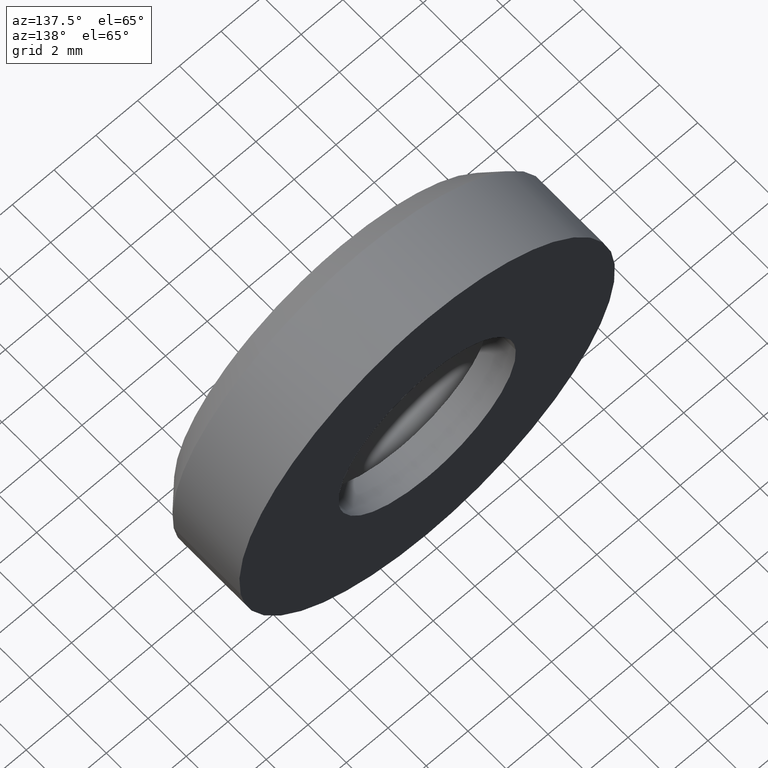
[diagram: clean part render]
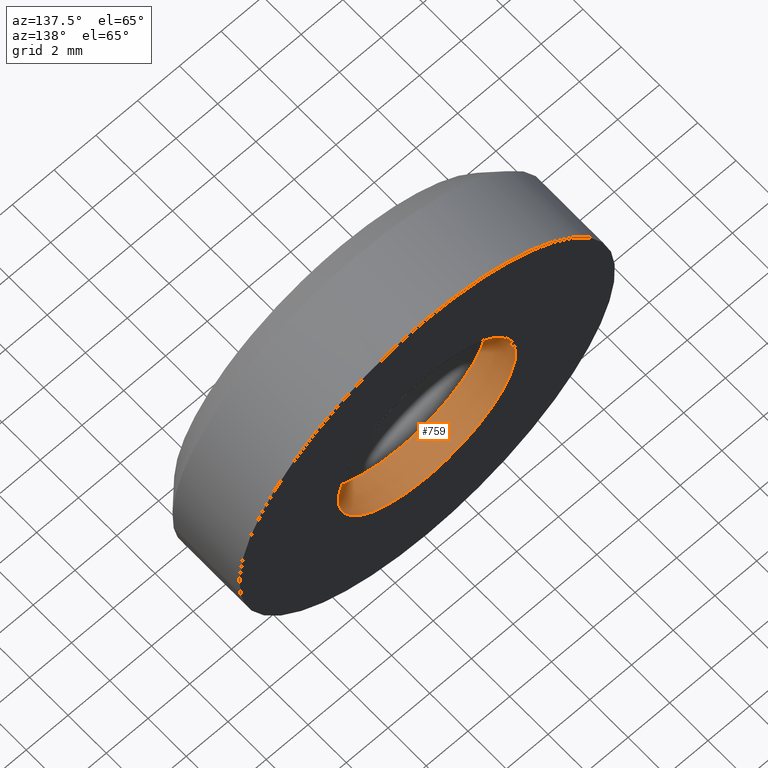
[diagram: same view with one face highlighted and labeled with its STEP entity id]
A machine part, auxiliary view. The second image highlights one B-rep face of the part: STEP entity #759.
In plain terms, the highlighted face is a freeform B-spline surface patch.
Its self-contained STEP definition (entity closure, byte-faithful):
#596=CARTESIAN_POINT('',(4.220291154128550,-7.903548E-014,-0.501639885129145));
#597=VERTEX_POINT('',#596);
#615=CARTESIAN_POINT('',(-4.242073260675592,-7.501291E-014,0.259450286230192));
#616=VERTEX_POINT('',#615);
#630=CARTESIAN_POINT('',(-4.242073256140719,1.500000000000000,0.259450360378121));
#631=VERTEX_POINT('',#630);
#632=CARTESIAN_POINT('',(-4.242073256140719,1.500000000000000,0.259450360378121));
#633=CARTESIAN_POINT('',(-4.242073260675592,-7.501291E-014,0.259450286230192));
#634=QUASI_UNIFORM_CURVE('',1,(#632,#633),.UNSPECIFIED.,.F.,.U.);
#635=EDGE_CURVE('',#631,#616,#634,.T.);
#652=CARTESIAN_POINT('',(4.220291145894166,1.500000000000000,-0.501639954405705));
#653=VERTEX_POINT('',#652);
#669=CARTESIAN_POINT('',(4.220291145894166,1.500000000000000,-0.501639954405705));
#670=CARTESIAN_POINT('',(4.220291154128550,-7.903548E-014,-0.501639885129145));
#671=QUASI_UNIFORM_CURVE('',1,(#669,#670),.UNSPECIFIED.,.F.,.U.);
#672=EDGE_CURVE('',#653,#597,#671,.T.);
#677=CARTESIAN_POINT('',(-4.242072893292933,1.537500000000000,0.259456293023142));
#678=CARTESIAN_POINT('',(-4.501529186316074,1.537500000000000,-3.982616600269792));
#679=CARTESIAN_POINT('',(-0.259456293023141,1.537500000000000,-4.242072893292934));
#680=CARTESIAN_POINT('',(3.746559836067880,1.537500000000000,-4.487091336113242));
#681=CARTESIAN_POINT('',(4.220290487045583,1.537500000000001,-0.501645497291223));
#682=CARTESIAN_POINT('',(-4.242072893292933,-0.038437500000000,0.259456293023142));
#683=CARTESIAN_POINT('',(-4.501529186316074,-0.038437500000000,-3.982616600269792));
#684=CARTESIAN_POINT('',(-0.259456293023141,-0.038437500000000,-4.242072893292934));
#685=CARTESIAN_POINT('',(3.746559836067880,-0.038437500000000,-4.487091336113242));
#686=CARTESIAN_POINT('',(4.220290487045583,-0.038437500000000,-0.501645497291223));
#694=(BOUNDED_SURFACE()B_SPLINE_SURFACE(2,1,((#677,#682),(#678,#683),(#679,#684),(#680,#685),(#681,#686)),.UNSPECIFIED.,.F.,.F.,.U.)B_SPLINE_SURFACE_WITH_KNOTS((3,2,3),(2,2),(0.0,7.041630560342616,13.801595898271531),(0.0,1.0),.UNSPECIFIED.)GEOMETRIC_REPRESENTATION_ITEM()RATIONAL_B_SPLINE_SURFACE(((1.0,1.0),(0.707106781186548,0.707106781186548),(1.0,1.0),(0.718822509939086,0.718822509939086),(0.977505800795127,0.977505800795127)))REPRESENTATION_ITEM('')SURFACE());
#695=CARTESIAN_POINT('',(9.184548E-016,0.0,-4.250000000000000));
#696=VERTEX_POINT('',#695);
#697=CARTESIAN_POINT('',(9.184548E-016,0.0,-4.250000000000000));
#698=CARTESIAN_POINT('',(3.774746790301646,0.0,-4.250000000000001));
#699=CARTESIAN_POINT('',(4.220291154128550,-7.903548E-014,-0.501639885129145));
#707=(BOUNDED_CURVE()B_SPLINE_CURVE(2,(#697,#698,#699),.UNSPECIFIED.,.F.,.U.)B_SPLINE_CURVE_WITH_KNOTS((3,3),(0.0,0.229562698256975),.UNSPECIFIED.)CURVE()GEOMETRIC_REPRESENTATION_ITEM()RATIONAL_B_SPLINE_CURVE((1.0,0.731050569552053,0.956027194690565))REPRESENTATION_ITEM(''));
#708=EDGE_CURVE('',#696,#597,#707,.T.);
#709=ORIENTED_EDGE('',*,*,#708,.T.);
#710=ORIENTED_EDGE('',*,*,#672,.F.);
#711=CARTESIAN_POINT('',(9.184548E-016,1.500000000000000,-4.250000000000000));
#712=VERTEX_POINT('',#711);
#713=CARTESIAN_POINT('',(9.184548E-016,1.500000000000000,-4.250000000000000));
#714=CARTESIAN_POINT('',(3.774746727902568,1.500000000000000,-4.250000000000000));
#715=CARTESIAN_POINT('',(4.220291145894166,1.500000000000000,-0.501639954405705));
#723=(BOUNDED_CURVE()B_SPLINE_CURVE(2,(#713,#714,#715),.UNSPECIFIED.,.F.,.U.)B_SPLINE_CURVE_WITH_KNOTS((3,3),(0.0,0.229562695482767),.UNSPECIFIED.)CURVE()GEOMETRIC_REPRESENTATION_ITEM()RATIONAL_B_SPLINE_CURVE((1.0,0.731050572802240,0.956027189252991))REPRESENTATION_ITEM(''));
#724=EDGE_CURVE('',#712,#653,#723,.T.);
#725=ORIENTED_EDGE('',*,*,#724,.F.);
#726=CARTESIAN_POINT('',(-4.242073256140719,1.500000000000000,0.259450360378121));
#727=CARTESIAN_POINT('',(-4.250000000000000,1.500000000000000,0.129846269379531));
#728=CARTESIAN_POINT('',(-4.249999999999999,1.500000000000000,0.0));
#729=CARTESIAN_POINT('',(-4.249999999999998,1.500000000000000,-4.249999999999999));
#730=CARTESIAN_POINT('',(9.184548E-016,1.500000000000000,-4.250000000000000));
#738=(BOUNDED_CURVE()B_SPLINE_CURVE(2,(#726,#727,#728,#729,#730),.UNSPECIFIED.,.F.,.U.)B_SPLINE_CURVE_WITH_KNOTS((3,2,3),(0.739333203553012,0.750000000000000,1.0),.UNSPECIFIED.)CURVE()GEOMETRIC_REPRESENTATION_ITEM()RATIONAL_B_SPLINE_CURVE((0.976072558849249,0.987503070616855,1.0,0.707106781186548,1.0))REPRESENTATION_ITEM(''));
#739=EDGE_CURVE('',#631,#712,#738,.T.);
#740=ORIENTED_EDGE('',*,*,#739,.F.);
#741=ORIENTED_EDGE('',*,*,#635,.T.);
#742=CARTESIAN_POINT('',(-4.242073260675592,-7.501291E-014,0.259450286230192));
#743=CARTESIAN_POINT('',(-4.250000000000000,0.0,0.129846232201622));
#744=CARTESIAN_POINT('',(-4.249999999999999,0.0,0.0));
#745=CARTESIAN_POINT('',(-4.249999999999998,0.0,-4.249999999999999));
#746=CARTESIAN_POINT('',(9.184548E-016,0.0,-4.250000000000000));
#754=(BOUNDED_CURVE()B_SPLINE_CURVE(2,(#742,#743,#744,#745,#746),.UNSPECIFIED.,.F.,.U.)B_SPLINE_CURVE_WITH_KNOTS((3,2,3),(0.739333206568988,0.750000000000000,1.0),.UNSPECIFIED.)CURVE()GEOMETRIC_REPRESENTATION_ITEM()RATIONAL_B_SPLINE_CURVE((0.976072565313075,0.987503074150291,1.0,0.707106781186548,1.0))REPRESENTATION_ITEM(''));
#755=EDGE_CURVE('',#616,#696,#754,.T.);
#756=ORIENTED_EDGE('',*,*,#755,.T.);
#757=EDGE_LOOP('',(#709,#710,#725,#740,#741,#756));
#758=FACE_OUTER_BOUND('',#757,.T.);
#759=ADVANCED_FACE('',(#758),#694,.F.);